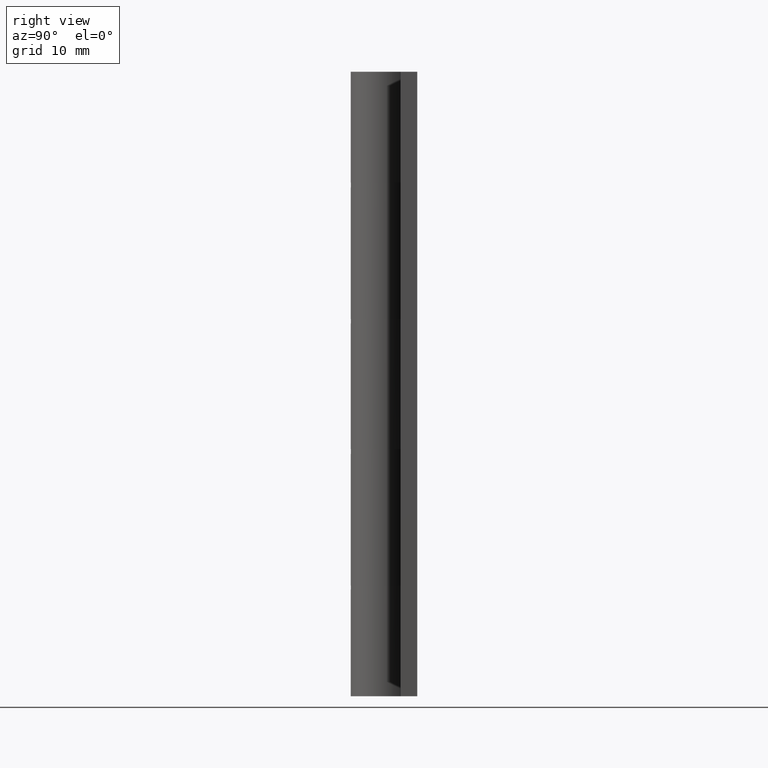
[diagram: clean part render]
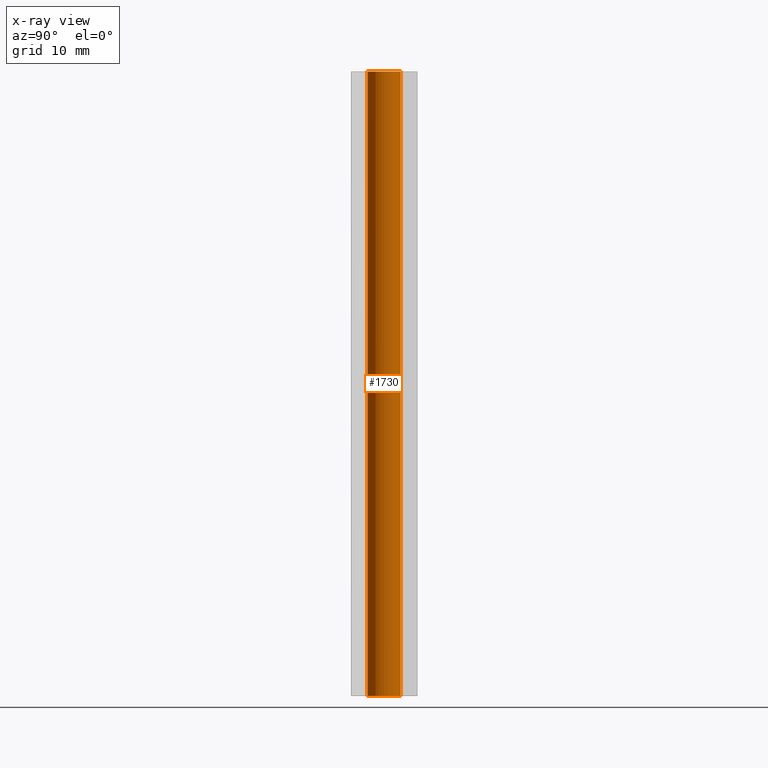
[diagram: x-ray — body ghosted, one internal face saturated and labeled with its STEP entity id]
A machine part, right view, then the same camera in x-ray: the body is ghosted and one INTERNAL B-rep face — a face not visible from any outside direction — is saturated and labeled: STEP entity #1730.
In plain terms, the highlighted face is a freeform B-spline surface patch.
Its self-contained STEP definition (entity closure, byte-faithful):
#1628=CARTESIAN_POINT('',(0.236068469313517,-1.986019052727332,76.875000000000028));
#1629=CARTESIAN_POINT('',(0.179229457275955,-1.992775230897211,76.875000000000028));
#1630=CARTESIAN_POINT('',(0.122097079069714,-1.996269596843733,76.875000000000014));
#1631=CARTESIAN_POINT('',(-1.874172517774020,-2.118366675913447,76.875000000000000));
#1632=CARTESIAN_POINT('',(-1.996269596843733,-0.122097079069714,76.875000000000014));
#1633=CARTESIAN_POINT('',(-2.118366675913447,1.874172517774020,76.875000000000000));
#1634=CARTESIAN_POINT('',(-0.122097079069714,1.996269596843733,76.875000000000014));
#1635=CARTESIAN_POINT('',(0.236068469313517,-1.986019052727332,-1.921875000000001));
#1636=CARTESIAN_POINT('',(0.179229457275955,-1.992775230897211,-1.921875000000000));
#1637=CARTESIAN_POINT('',(0.122097079069714,-1.996269596843733,-1.921875000000000));
#1638=CARTESIAN_POINT('',(-1.874172517774020,-2.118366675913447,-1.921875000000000));
#1639=CARTESIAN_POINT('',(-1.996269596843733,-0.122097079069714,-1.921875000000000));
#1640=CARTESIAN_POINT('',(-2.118366675913447,1.874172517774020,-1.921875000000000));
#1641=CARTESIAN_POINT('',(-0.122097079069714,1.996269596843733,-1.921875000000000));
#1649=(BOUNDED_SURFACE()B_SPLINE_SURFACE(2,1,((#1628,#1635),(#1629,#1636),(#1630,#1637),(#1631,#1638),(#1632,#1639),(#1633,#1640),(#1634,#1641)),.UNSPECIFIED.,.F.,.F.,.U.)B_SPLINE_SURFACE_WITH_KNOTS((3,2,2,3),(2,2),(0.0,0.132548339959391,3.446256838944149,6.759965337928908),(0.0,78.796875000000028),.UNSPECIFIED.)GEOMETRIC_REPRESENTATION_ITEM()RATIONAL_B_SPLINE_SURFACE(((0.977505800795127,0.977505800795127),(0.988284271247462,0.988284271247462),(1.0,1.0),(0.707106781186548,0.707106781186548),(1.0,1.0),(0.707106781186548,0.707106781186548),(1.0,1.0)))REPRESENTATION_ITEM('')SURFACE());
#1650=CARTESIAN_POINT('',(0.236065903320478,-1.986019357731140,5.451702E-015));
#1651=VERTEX_POINT('',#1650);
#1652=CARTESIAN_POINT('',(-2.0,0.0,0.0));
#1653=VERTEX_POINT('',#1652);
#1654=CARTESIAN_POINT('',(0.236065903320478,-1.986019357731140,5.451702E-015));
#1655=CARTESIAN_POINT('',(0.118446942743874,-2.0,0.0));
#1656=CARTESIAN_POINT('',(0.0,-2.0,0.0));
#1657=CARTESIAN_POINT('',(-2.000000000000000,-2.000000000000000,0.0));
#1658=CARTESIAN_POINT('',(-2.0,0.0,0.0));
#1666=(BOUNDED_CURVE()B_SPLINE_CURVE(2,(#1654,#1655,#1656,#1657,#1658),.UNSPECIFIED.,.F.,.U.)B_SPLINE_CURVE_WITH_KNOTS((3,2,3),(0.229562691872660,0.250000000000000,0.500000000000000),.UNSPECIFIED.)CURVE()GEOMETRIC_REPRESENTATION_ITEM()RATIONAL_B_SPLINE_CURVE((0.956027182177020,0.976056204154805,1.0,0.707106781186548,1.0))REPRESENTATION_ITEM(''));
#1667=EDGE_CURVE('',#1651,#1653,#1666,.T.);
#1668=ORIENTED_EDGE('',*,*,#1667,.F.);
#1669=CARTESIAN_POINT('',(0.236065934856882,-1.986019353982642,75.0));
#1670=VERTEX_POINT('',#1669);
#1671=CARTESIAN_POINT('',(0.236065934856882,-1.986019353982642,75.0));
#1672=CARTESIAN_POINT('',(0.236065903320478,-1.986019357731140,5.451702E-015));
#1673=QUASI_UNIFORM_CURVE('',1,(#1671,#1672),.UNSPECIFIED.,.F.,.U.);
#1674=EDGE_CURVE('',#1670,#1651,#1673,.T.);
#1675=ORIENTED_EDGE('',*,*,#1674,.F.);
#1676=CARTESIAN_POINT('',(-2.0,0.0,75.0));
#1677=VERTEX_POINT('',#1676);
#1678=CARTESIAN_POINT('',(0.236065934856882,-1.986019353982642,75.0));
#1679=CARTESIAN_POINT('',(0.118446958678769,-2.000000000000000,75.0));
#1680=CARTESIAN_POINT('',(0.0,-2.0,75.0));
#1681=CARTESIAN_POINT('',(-2.000000000000000,-2.000000000000000,75.000000000000014));
#1682=CARTESIAN_POINT('',(-2.0,0.0,75.0));
#1690=(BOUNDED_CURVE()B_SPLINE_CURVE(2,(#1678,#1679,#1680,#1681,#1682),.UNSPECIFIED.,.F.,.U.)B_SPLINE_CURVE_WITH_KNOTS((3,2,3),(0.229562689189023,0.250000000000000,0.500000000000000),.UNSPECIFIED.)CURVE()GEOMETRIC_REPRESENTATION_ITEM()RATIONAL_B_SPLINE_CURVE((0.956027176916969,0.976056201010727,1.0,0.707106781186548,1.0))REPRESENTATION_ITEM(''));
#1691=EDGE_CURVE('',#1670,#1677,#1690,.T.);
#1692=ORIENTED_EDGE('',*,*,#1691,.T.);
#1693=CARTESIAN_POINT('',(-0.122097079415836,1.996269596822564,75.0));
#1694=VERTEX_POINT('',#1693);
#1695=CARTESIAN_POINT('',(-2.0,0.0,75.0));
#1696=CARTESIAN_POINT('',(-2.000000000000000,1.881412133157761,74.999999999999986));
#1697=CARTESIAN_POINT('',(-0.122097079415836,1.996269596822564,75.0));
#1705=(BOUNDED_CURVE()B_SPLINE_CURVE(2,(#1695,#1696,#1697),.UNSPECIFIED.,.F.,.U.)B_SPLINE_CURVE_WITH_KNOTS((3,3),(0.500000000000000,0.739332962182135),.UNSPECIFIED.)CURVE()GEOMETRIC_REPRESENTATION_ITEM()RATIONAL_B_SPLINE_CURVE((1.0,0.719603993353265,0.976072041544968))REPRESENTATION_ITEM(''));
#1706=EDGE_CURVE('',#1677,#1694,#1705,.T.);
#1707=ORIENTED_EDGE('',*,*,#1706,.T.);
#1708=CARTESIAN_POINT('',(-0.122097079415836,1.996269596822564,-3.330669E-015));
#1709=VERTEX_POINT('',#1708);
#1710=CARTESIAN_POINT('',(-0.122097079415836,1.996269596822564,75.0));
#1711=CARTESIAN_POINT('',(-0.122097079415836,1.996269596822564,-3.330669E-015));
#1712=QUASI_UNIFORM_CURVE('',1,(#1710,#1711),.UNSPECIFIED.,.F.,.U.);
#1713=EDGE_CURVE('',#1694,#1709,#1712,.T.);
#1714=ORIENTED_EDGE('',*,*,#1713,.T.);
#1715=CARTESIAN_POINT('',(-2.0,0.0,0.0));
#1716=CARTESIAN_POINT('',(-2.000000000000000,1.881412133157761,0.0));
#1717=CARTESIAN_POINT('',(-0.122097079415836,1.996269596822564,-3.330669E-015));
#1725=(BOUNDED_CURVE()B_SPLINE_CURVE(2,(#1715,#1716,#1717),.UNSPECIFIED.,.F.,.U.)B_SPLINE_CURVE_WITH_KNOTS((3,3),(0.500000000000000,0.739332962182135),.UNSPECIFIED.)CURVE()GEOMETRIC_REPRESENTATION_ITEM()RATIONAL_B_SPLINE_CURVE((1.0,0.719603993353265,0.976072041544968))REPRESENTATION_ITEM(''));
#1726=EDGE_CURVE('',#1653,#1709,#1725,.T.);
#1727=ORIENTED_EDGE('',*,*,#1726,.F.);
#1728=EDGE_LOOP('',(#1668,#1675,#1692,#1707,#1714,#1727));
#1729=FACE_OUTER_BOUND('',#1728,.T.);
#1730=ADVANCED_FACE('',(#1729),#1649,.T.);